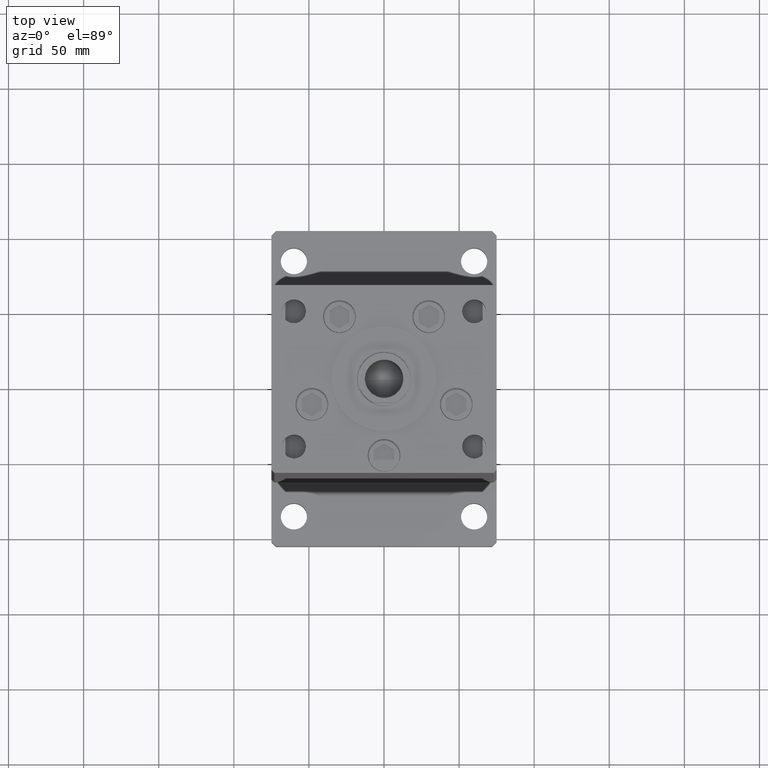
[diagram: clean part render]
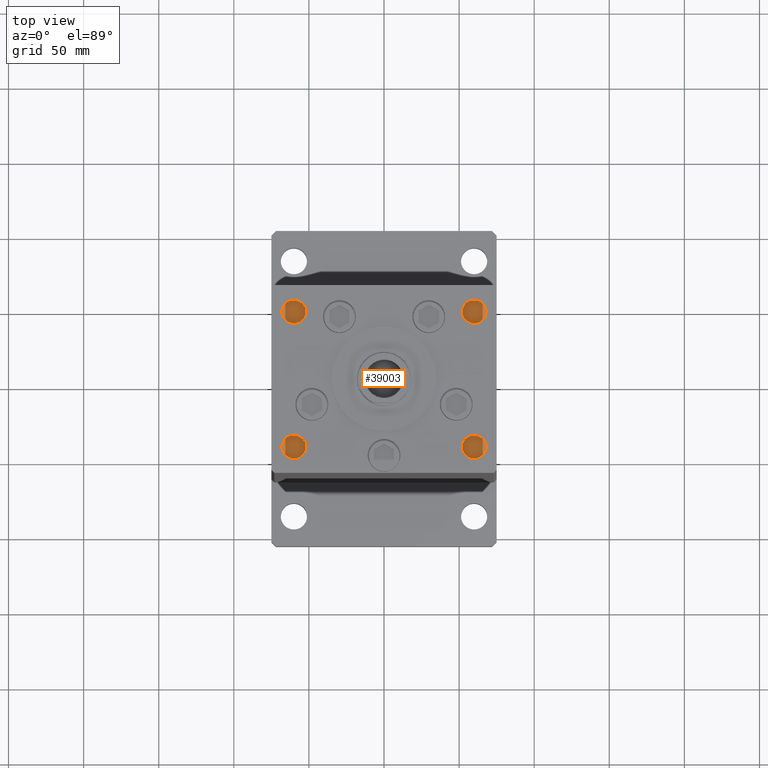
[diagram: same view with one face highlighted and labeled with its STEP entity id]
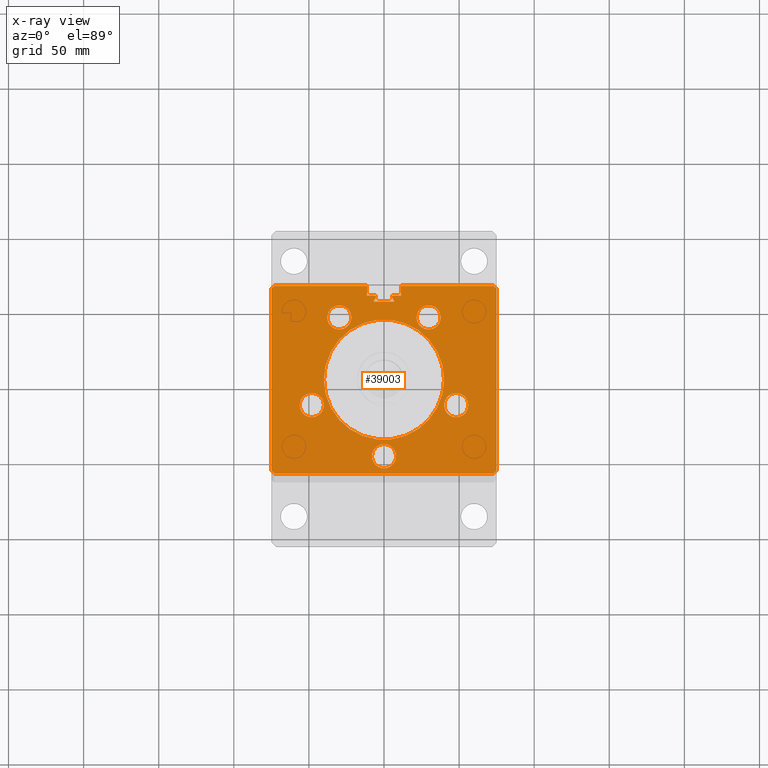
[diagram: x-ray of the same camera — body ghosted, the highlighted face saturated]
A machine part, top view. The second image highlights one B-rep face of the part: STEP entity #39003.
The next image is the same camera in x-ray: the body ghosted, the highlighted face saturated — about 0% of this face is hidden behind the body in this view.
In plain terms, the highlighted planar face has unit normal (0, 0, -1).
Its self-contained STEP definition (entity closure, byte-faithful):
#380 = CIRCLE ( 'NONE', #19008, 8.000000000000000000 ) ;
#604 = CARTESIAN_POINT ( 'NONE',  ( 72.99999999999998579, -62.50000000000000000, 317.0000000000000000 ) ) ;
#1286 = CARTESIAN_POINT ( 'NONE',  ( 73.00000000000001421, 62.50000000000000000, 317.0000000000000000 ) ) ;
#1452 = CIRCLE ( 'NONE', #10329, 8.000000000000000000 ) ;
#1484 = AXIS2_PLACEMENT_3D ( 'NONE', #22049, #16808, #34777 ) ;
#1746 = EDGE_CURVE ( 'NONE', #22954, #33125, #16579, .T. ) ;
#1755 = CARTESIAN_POINT ( 'NONE',  ( 6.183333333334001480, 55.99999999999999289, 317.0000000000000000 ) ) ;
#1797 = EDGE_LOOP ( 'NONE', ( #43996, #42377 ) ) ;
#1890 = EDGE_CURVE ( 'NONE', #12719, #51987, #12760, .T. ) ;
#2171 = AXIS2_PLACEMENT_3D ( 'NONE', #5818, #44077, #18594 ) ;
#2283 = DIRECTION ( 'NONE',  ( 0.7071067811865474617, -0.7071067811865474617, 0.000000000000000000 ) ) ;
#2338 = DIRECTION ( 'NONE',  ( 1.000000000000000000, 0.000000000000000000, 0.000000000000000000 ) ) ;
#2426 = ORIENTED_EDGE ( 'NONE', *, *, #25910, .T. ) ;
#2493 = ORIENTED_EDGE ( 'NONE', *, *, #1746, .F. ) ;
#2545 = DIRECTION ( 'NONE',  ( 1.000000000000000000, 0.000000000000000000, 0.000000000000000000 ) ) ;
#2717 = CARTESIAN_POINT ( 'NONE',  ( -75.00000000000001421, 60.50000000000000000, 317.0000000000000000 ) ) ;
#3162 = LINE ( 'NONE', #49182, #7488 ) ;
#3616 = CARTESIAN_POINT ( 'NONE',  ( -37.73102073172060500, 41.43749999999999289, 317.0000000000000000 ) ) ;
#3999 = VECTOR ( 'NONE', #32031, 1000.000000000000114 ) ;
#4003 = ORIENTED_EDGE ( 'NONE', *, *, #35906, .F. ) ;
#4589 = CARTESIAN_POINT ( 'NONE',  ( 27.67377574066574297, 15.97746187336677259, 317.0000000000000000 ) ) ;
#4815 = VERTEX_POINT ( 'NONE', #51220 ) ;
#4845 = CARTESIAN_POINT ( 'NONE',  ( -11.25000000000000178, 62.49999999999999289, 317.0000000000000000 ) ) ;
#4954 = CARTESIAN_POINT ( 'NONE',  ( 6.245698675651500444E-15, -51.00000000000000000, 317.0000000000000000 ) ) ;
#4965 = ORIENTED_EDGE ( 'NONE', *, *, #16099, .T. ) ;
#5102 = DIRECTION ( 'NONE',  ( -0.000000000000000000, 0.000000000000000000, 1.000000000000000000 ) ) ;
#5818 = CARTESIAN_POINT ( 'NONE',  ( 0.000000000000000000, 0.000000000000000000, 317.0000000000000000 ) ) ;
#5985 = CARTESIAN_POINT ( 'NONE',  ( -6.183333333334001480, 55.99999999999999289, 317.0000000000000000 ) ) ;
#6163 = CARTESIAN_POINT ( 'NONE',  ( 11.25000000000000178, 55.99999999999999289, 317.0000000000000000 ) ) ;
#6164 = ORIENTED_EDGE ( 'NONE', *, *, #51593, .F. ) ;
#6227 = DIRECTION ( 'NONE',  ( -1.000000000000000000, 0.000000000000000000, 0.000000000000000000 ) ) ;
#6329 = CARTESIAN_POINT ( 'NONE',  ( 48.08326112068523628, -16.99999999999998934, 317.0000000000000000 ) ) ;
#6647 = PLANE ( 'NONE',  #2171 ) ;
#6770 = CARTESIAN_POINT ( 'NONE',  ( 40.00000000000000000, 4.898587196589413026E-15, 317.0000000000000000 ) ) ;
#6922 = FACE_BOUND ( 'NONE', #32776, .T. ) ;
#6949 = EDGE_CURVE ( 'NONE', #21911, #49065, #32396, .T. ) ;
#7212 = EDGE_CURVE ( 'NONE', #27855, #41832, #39514, .T. ) ;
#7249 = VERTEX_POINT ( 'NONE', #5985 ) ;
#7488 = VECTOR ( 'NONE', #2338, 1000.000000000000000 ) ;
#7740 = EDGE_CURVE ( 'NONE', #41832, #28500, #14387, .T. ) ;
#8018 = CARTESIAN_POINT ( 'NONE',  ( -40.08326112068523628, -17.00000000000000000, 317.0000000000000000 ) ) ;
#8024 = VECTOR ( 'NONE', #34620, 1000.000000000000114 ) ;
#8365 = CARTESIAN_POINT ( 'NONE',  ( 29.73102073172059789, 41.43750000000000000, 317.0000000000000000 ) ) ;
#8429 = ORIENTED_EDGE ( 'NONE', *, *, #19482, .T. ) ;
#8567 = EDGE_LOOP ( 'NONE', ( #6164, #37391 ) ) ;
#8571 = DIRECTION ( 'NONE',  ( 0.000000000000000000, 0.000000000000000000, 1.000000000000000000 ) ) ;
#8750 = LINE ( 'NONE', #4589, #47161 ) ;
#8784 = DIRECTION ( 'NONE',  ( -2.293849224432141861E-16, -1.000000000000000000, 0.000000000000000000 ) ) ;
#9001 = LINE ( 'NONE', #29528, #11843 ) ;
#9407 = DIRECTION ( 'NONE',  ( 0.000000000000000000, 1.000000000000000000, 0.000000000000000000 ) ) ;
#9420 = AXIS2_PLACEMENT_3D ( 'NONE', #35712, #39303, #14657 ) ;
#9536 = EDGE_CURVE ( 'NONE', #7249, #27047, #27612, .T. ) ;
#9660 = VERTEX_POINT ( 'NONE', #25289 ) ;
#9978 = FACE_BOUND ( 'NONE', #51591, .T. ) ;
#10125 = EDGE_CURVE ( 'NONE', #37820, #54811, #16971, .T. ) ;
#10182 = LINE ( 'NONE', #27086, #24331 ) ;
#10329 = AXIS2_PLACEMENT_3D ( 'NONE', #46696, #46154, #25643 ) ;
#10601 = CARTESIAN_POINT ( 'NONE',  ( -75.00000000000001421, 60.50000000000000000, 317.0000000000000000 ) ) ;
#10753 = LINE ( 'NONE', #19355, #35053 ) ;
#10807 = FACE_OUTER_BOUND ( 'NONE', #20723, .T. ) ;
#10928 = CARTESIAN_POINT ( 'NONE',  ( 0.000000000000000000, 55.99999999999999289, 317.0000000000000000 ) ) ;
#11074 = CARTESIAN_POINT ( 'NONE',  ( -29.73102073172060500, 41.43749999999999289, 317.0000000000000000 ) ) ;
#11729 = CARTESIAN_POINT ( 'NONE',  ( -73.00000000000001421, 62.50000000000000000, 317.0000000000000000 ) ) ;
#11784 = CARTESIAN_POINT ( 'NONE',  ( -56.08326112068523628, -17.00000000000000000, 317.0000000000000000 ) ) ;
#11843 = VECTOR ( 'NONE', #51672, 1000.000000000000000 ) ;
#12070 = CIRCLE ( 'NONE', #9420, 0.9333333333340068094 ) ;
#12522 = CARTESIAN_POINT ( 'NONE',  ( -5.375042956467942723, 54.59999999999898534, 317.0000000000000000 ) ) ;
#12607 = DIRECTION ( 'NONE',  ( -1.000000000000000000, 0.000000000000000000, 0.000000000000000000 ) ) ;
#12719 = VERTEX_POINT ( 'NONE', #13694 ) ;
#12760 = LINE ( 'NONE', #42425, #36037 ) ;
#12881 = CARTESIAN_POINT ( 'NONE',  ( 0.000000000000000000, 51.99999999999986500, 317.0000000000000000 ) ) ;
#13094 = EDGE_CURVE ( 'NONE', #51789, #13881, #25935, .T. ) ;
#13468 = EDGE_CURVE ( 'NONE', #22954, #52969, #8750, .T. ) ;
#13569 = ORIENTED_EDGE ( 'NONE', *, *, #9536, .F. ) ;
#13694 = CARTESIAN_POINT ( 'NONE',  ( 11.24999999999999467, 62.49999999999999289, 317.0000000000000000 ) ) ;
#13881 = VERTEX_POINT ( 'NONE', #22801 ) ;
#14126 = AXIS2_PLACEMENT_3D ( 'NONE', #6329, #22697, #27676 ) ;
#14387 = LINE ( 'NONE', #31300, #8024 ) ;
#14600 = DIRECTION ( 'NONE',  ( -0.000000000000000000, 0.000000000000000000, 1.000000000000000000 ) ) ;
#14655 = EDGE_CURVE ( 'NONE', #30465, #37332, #32368, .T. ) ;
#14657 = DIRECTION ( 'NONE',  ( 1.000000000000000000, 0.000000000000000000, 0.000000000000000000 ) ) ;
#14880 = CIRCLE ( 'NONE', #33351, 8.000000000000000000 ) ;
#14948 = CARTESIAN_POINT ( 'NONE',  ( 74.99999999999998579, -60.50000000000000000, 317.0000000000000000 ) ) ;
#15100 = LINE ( 'NONE', #10928, #29646 ) ;
#15159 = VERTEX_POINT ( 'NONE', #8018 ) ;
#15598 = DIRECTION ( 'NONE',  ( 1.000000000000000000, 0.000000000000000000, 0.000000000000000000 ) ) ;
#15649 = EDGE_LOOP ( 'NONE', ( #4003, #46419 ) ) ;
#15805 = VERTEX_POINT ( 'NONE', #25425 ) ;
#16099 = EDGE_CURVE ( 'NONE', #30384, #28500, #9001, .T. ) ;
#16148 = EDGE_CURVE ( 'NONE', #54811, #37820, #47242, .T. ) ;
#16222 = AXIS2_PLACEMENT_3D ( 'NONE', #41854, #45756, #49915 ) ;
#16380 = CARTESIAN_POINT ( 'NONE',  ( -6.876153656360466826, 51.99999999999986500, 317.0000000000000000 ) ) ;
#16579 = CIRCLE ( 'NONE', #42990, 0.9333333333340068094 ) ;
#16699 = CARTESIAN_POINT ( 'NONE',  ( 75.00000000000001421, 60.50000000000000000, 317.0000000000000000 ) ) ;
#16760 = EDGE_CURVE ( 'NONE', #17553, #27855, #29671, .T. ) ;
#16808 = DIRECTION ( 'NONE',  ( 0.000000000000000000, 0.000000000000000000, 1.000000000000000000 ) ) ;
#16905 = DIRECTION ( 'NONE',  ( 1.000000000000000000, 0.000000000000000000, 0.000000000000000000 ) ) ;
#16971 = CIRCLE ( 'NONE', #24063, 40.00000000000000000 ) ;
#17221 = CARTESIAN_POINT ( 'NONE',  ( -74.99999999999998579, -60.50000000000000000, 317.0000000000000000 ) ) ;
#17553 = VERTEX_POINT ( 'NONE', #33561 ) ;
#17749 = ORIENTED_EDGE ( 'NONE', *, *, #6949, .T. ) ;
#17840 = ORIENTED_EDGE ( 'NONE', *, *, #39472, .F. ) ;
#18214 = DIRECTION ( 'NONE',  ( 0.7071067811865474617, -0.7071067811865474617, 0.000000000000000000 ) ) ;
#18285 = VECTOR ( 'NONE', #12607, 1000.000000000000000 ) ;
#18594 = DIRECTION ( 'NONE',  ( -1.000000000000000000, 0.000000000000000000, -0.000000000000000000 ) ) ;
#18868 = DIRECTION ( 'NONE',  ( 0.000000000000000000, 0.000000000000000000, 1.000000000000000000 ) ) ;
#18901 = DIRECTION ( 'NONE',  ( 1.000000000000000000, 0.000000000000000000, 0.000000000000000000 ) ) ;
#19008 = AXIS2_PLACEMENT_3D ( 'NONE', #11074, #18868, #23839 ) ;
#19095 = EDGE_CURVE ( 'NONE', #7249, #15805, #10182, .T. ) ;
#19193 = VECTOR ( 'NONE', #9407, 1000.000000000000000 ) ;
#19207 = CARTESIAN_POINT ( 'NONE',  ( -29.73102073172060500, 41.43749999999999289, 317.0000000000000000 ) ) ;
#19245 = DIRECTION ( 'NONE',  ( 0.000000000000000000, 0.000000000000000000, -1.000000000000000000 ) ) ;
#19313 = CIRCLE ( 'NONE', #20237, 8.000000000000000000 ) ;
#19355 = CARTESIAN_POINT ( 'NONE',  ( -73.00000000000001421, 62.50000000000000000, 317.0000000000000000 ) ) ;
#19482 = EDGE_CURVE ( 'NONE', #54471, #27811, #24247, .T. ) ;
#19765 = DIRECTION ( 'NONE',  ( 0.000000000000000000, 0.000000000000000000, 1.000000000000000000 ) ) ;
#20090 = ORIENTED_EDGE ( 'NONE', *, *, #47927, .T. ) ;
#20237 = AXIS2_PLACEMENT_3D ( 'NONE', #44205, #31468, #27302 ) ;
#20460 = VECTOR ( 'NONE', #8784, 1000.000000000000000 ) ;
#20723 = EDGE_LOOP ( 'NONE', ( #24925, #20090, #45485, #2426, #17749, #31138, #4965, #41501, #36054, #26716, #32756, #24470, #45122, #2493, #28847, #30449, #8429, #46026, #13569 ) ) ;
#20725 = AXIS2_PLACEMENT_3D ( 'NONE', #43075, #5102, #34227 ) ;
#21911 = VERTEX_POINT ( 'NONE', #10601 ) ;
#22049 = CARTESIAN_POINT ( 'NONE',  ( 6.245698675651500444E-15, -51.00000000000000000, 317.0000000000000000 ) ) ;
#22665 = CARTESIAN_POINT ( 'NONE',  ( -40.00000000000000000, 0.000000000000000000, 317.0000000000000000 ) ) ;
#22697 = DIRECTION ( 'NONE',  ( 0.000000000000000000, 0.000000000000000000, 1.000000000000000000 ) ) ;
#22801 = CARTESIAN_POINT ( 'NONE',  ( 21.73102073172059789, 41.43750000000000000, 317.0000000000000000 ) ) ;
#22954 = VERTEX_POINT ( 'NONE', #24194 ) ;
#22974 = AXIS2_PLACEMENT_3D ( 'NONE', #8365, #19765, #15598 ) ;
#23239 = DIRECTION ( 'NONE',  ( 2.293849224432141861E-16, -1.000000000000000000, 0.000000000000000000 ) ) ;
#23686 = CARTESIAN_POINT ( 'NONE',  ( 8.000000000000007105, -51.00000000000000000, 317.0000000000000000 ) ) ;
#23839 = DIRECTION ( 'NONE',  ( 1.000000000000000000, 0.000000000000000000, 0.000000000000000000 ) ) ;
#24063 = AXIS2_PLACEMENT_3D ( 'NONE', #52580, #14600, #27064 ) ;
#24194 = CARTESIAN_POINT ( 'NONE',  ( 5.375042956467943611, 54.59999999999898534, 317.0000000000000000 ) ) ;
#24247 = LINE ( 'NONE', #40308, #3999 ) ;
#24331 = VECTOR ( 'NONE', #31540, 1000.000000000000000 ) ;
#24470 = ORIENTED_EDGE ( 'NONE', *, *, #1890, .T. ) ;
#24925 = ORIENTED_EDGE ( 'NONE', *, *, #19095, .T. ) ;
#25130 = ORIENTED_EDGE ( 'NONE', *, *, #35506, .F. ) ;
#25220 = CARTESIAN_POINT ( 'NONE',  ( 56.08326112068523628, -16.99999999999998934, 317.0000000000000000 ) ) ;
#25289 = CARTESIAN_POINT ( 'NONE',  ( -7.999999999999992895, -51.00000000000000000, 317.0000000000000000 ) ) ;
#25392 = CIRCLE ( 'NONE', #1484, 8.000000000000000000 ) ;
#25425 = CARTESIAN_POINT ( 'NONE',  ( -11.25000000000000178, 55.99999999999999289, 317.0000000000000000 ) ) ;
#25499 = ORIENTED_EDGE ( 'NONE', *, *, #13094, .F. ) ;
#25643 = DIRECTION ( 'NONE',  ( 1.000000000000000000, 0.000000000000000000, 0.000000000000000000 ) ) ;
#25910 = EDGE_CURVE ( 'NONE', #30465, #21911, #10753, .T. ) ;
#25935 = CIRCLE ( 'NONE', #16222, 8.000000000000000000 ) ;
#26716 = ORIENTED_EDGE ( 'NONE', *, *, #16760, .F. ) ;
#27047 = VERTEX_POINT ( 'NONE', #33002 ) ;
#27064 = DIRECTION ( 'NONE',  ( 1.000000000000000000, 0.000000000000000000, 0.000000000000000000 ) ) ;
#27086 = CARTESIAN_POINT ( 'NONE',  ( 0.000000000000000000, 55.99999999999999289, 317.0000000000000000 ) ) ;
#27249 = EDGE_CURVE ( 'NONE', #27047, #27811, #12070, .T. ) ;
#27302 = DIRECTION ( 'NONE',  ( 1.000000000000000000, 0.000000000000000000, 0.000000000000000000 ) ) ;
#27612 = CIRCLE ( 'NONE', #39980, 0.9333333333340068094 ) ;
#27676 = DIRECTION ( 'NONE',  ( 1.000000000000000000, 0.000000000000000000, 0.000000000000000000 ) ) ;
#27811 = VERTEX_POINT ( 'NONE', #12522 ) ;
#27855 = VERTEX_POINT ( 'NONE', #16699 ) ;
#28206 = DIRECTION ( 'NONE',  ( 1.000000000000000000, 0.000000000000000000, 0.000000000000000000 ) ) ;
#28500 = VERTEX_POINT ( 'NONE', #604 ) ;
#28847 = ORIENTED_EDGE ( 'NONE', *, *, #13468, .T. ) ;
#29499 = VERTEX_POINT ( 'NONE', #11784 ) ;
#29528 = CARTESIAN_POINT ( 'NONE',  ( -72.99999999999998579, -62.50000000000000000, 317.0000000000000000 ) ) ;
#29547 = DIRECTION ( 'NONE',  ( 0.5000000000000016653, -0.8660254037844375974, 0.000000000000000000 ) ) ;
#29573 = DIRECTION ( 'NONE',  ( -0.7071067811865474617, -0.7071067811865474617, 0.000000000000000000 ) ) ;
#29646 = VECTOR ( 'NONE', #6227, 1000.000000000000000 ) ;
#29671 = LINE ( 'NONE', #1286, #36689 ) ;
#29686 = VECTOR ( 'NONE', #2283, 1000.000000000000114 ) ;
#29761 = CARTESIAN_POINT ( 'NONE',  ( 40.08326112068523628, -16.99999999999998934, 317.0000000000000000 ) ) ;
#30384 = VERTEX_POINT ( 'NONE', #52245 ) ;
#30449 = ORIENTED_EDGE ( 'NONE', *, *, #43128, .T. ) ;
#30465 = VERTEX_POINT ( 'NONE', #11729 ) ;
#31041 = CARTESIAN_POINT ( 'NONE',  ( -11.25000000000000178, 0.000000000000000000, 317.0000000000000000 ) ) ;
#31138 = ORIENTED_EDGE ( 'NONE', *, *, #39505, .T. ) ;
#31300 = CARTESIAN_POINT ( 'NONE',  ( 74.99999999999998579, -60.50000000000000000, 317.0000000000000000 ) ) ;
#31314 = LINE ( 'NONE', #31041, #19193 ) ;
#31468 = DIRECTION ( 'NONE',  ( 0.000000000000000000, 0.000000000000000000, 1.000000000000000000 ) ) ;
#31540 = DIRECTION ( 'NONE',  ( -1.000000000000000000, 0.000000000000000000, 0.000000000000000000 ) ) ;
#31615 = FACE_BOUND ( 'NONE', #1797, .T. ) ;
#32003 = DIRECTION ( 'NONE',  ( 1.000000000000000000, 0.000000000000000000, 0.000000000000000000 ) ) ;
#32031 = DIRECTION ( 'NONE',  ( 0.5000000000000016653, 0.8660254037844375974, 0.000000000000000000 ) ) ;
#32168 = FACE_BOUND ( 'NONE', #8567, .T. ) ;
#32368 = LINE ( 'NONE', #49255, #37469 ) ;
#32396 = LINE ( 'NONE', #2717, #35476 ) ;
#32756 = ORIENTED_EDGE ( 'NONE', *, *, #38342, .F. ) ;
#32776 = EDGE_LOOP ( 'NONE', ( #54611, #51245 ) ) ;
#33002 = CARTESIAN_POINT ( 'NONE',  ( -5.249999999999994671, 55.06666666666598786, 317.0000000000000000 ) ) ;
#33125 = VERTEX_POINT ( 'NONE', #1755 ) ;
#33351 = AXIS2_PLACEMENT_3D ( 'NONE', #39115, #39945, #18901 ) ;
#33561 = CARTESIAN_POINT ( 'NONE',  ( 73.00000000000001421, 62.50000000000000000, 317.0000000000000000 ) ) ;
#33961 = LINE ( 'NONE', #12881, #18285 ) ;
#34227 = DIRECTION ( 'NONE',  ( 1.000000000000000000, 0.000000000000000000, 0.000000000000000000 ) ) ;
#34620 = DIRECTION ( 'NONE',  ( -0.7071067811865474617, -0.7071067811865474617, 0.000000000000000000 ) ) ;
#34777 = DIRECTION ( 'NONE',  ( 1.000000000000000000, 0.000000000000000000, 0.000000000000000000 ) ) ;
#35053 = VECTOR ( 'NONE', #29573, 1000.000000000000114 ) ;
#35282 = ORIENTED_EDGE ( 'NONE', *, *, #38939, .F. ) ;
#35476 = VECTOR ( 'NONE', #23239, 1000.000000000000000 ) ;
#35506 = EDGE_CURVE ( 'NONE', #13881, #51789, #53039, .T. ) ;
#35712 = CARTESIAN_POINT ( 'NONE',  ( -6.183333333334001480, 55.06666666666598786, 317.0000000000000000 ) ) ;
#35846 = AXIS2_PLACEMENT_3D ( 'NONE', #19207, #53022, #44971 ) ;
#35906 = EDGE_CURVE ( 'NONE', #37372, #9660, #43209, .T. ) ;
#36037 = VECTOR ( 'NONE', #37173, 1000.000000000000000 ) ;
#36054 = ORIENTED_EDGE ( 'NONE', *, *, #7212, .F. ) ;
#36090 = EDGE_CURVE ( 'NONE', #48947, #47867, #54738, .T. ) ;
#36689 = VECTOR ( 'NONE', #18214, 1000.000000000000114 ) ;
#37173 = DIRECTION ( 'NONE',  ( -0.000000000000000000, -1.000000000000000000, 0.000000000000000000 ) ) ;
#37332 = VERTEX_POINT ( 'NONE', #4845 ) ;
#37372 = VERTEX_POINT ( 'NONE', #23686 ) ;
#37391 = ORIENTED_EDGE ( 'NONE', *, *, #43043, .F. ) ;
#37469 = VECTOR ( 'NONE', #28206, 1000.000000000000000 ) ;
#37820 = VERTEX_POINT ( 'NONE', #22665 ) ;
#38342 = EDGE_CURVE ( 'NONE', #12719, #17553, #3162, .T. ) ;
#38385 = EDGE_CURVE ( 'NONE', #51987, #33125, #15100, .T. ) ;
#38420 = CARTESIAN_POINT ( 'NONE',  ( 75.00000000000001421, 60.50000000000000000, 317.0000000000000000 ) ) ;
#38601 = CARTESIAN_POINT ( 'NONE',  ( 37.73102073172059789, 41.43750000000000000, 317.0000000000000000 ) ) ;
#38888 = AXIS2_PLACEMENT_3D ( 'NONE', #4954, #8571, #16905 ) ;
#38939 = EDGE_CURVE ( 'NONE', #4815, #47675, #380, .T. ) ;
#39003 = ADVANCED_FACE ( 'NONE', ( #32168, #48778, #31615, #9978, #44891, #10807, #6922 ), #6647, .F. ) ;
#39115 = CARTESIAN_POINT ( 'NONE',  ( 48.08326112068523628, -16.99999999999998934, 317.0000000000000000 ) ) ;
#39303 = DIRECTION ( 'NONE',  ( 0.000000000000000000, 0.000000000000000000, -1.000000000000000000 ) ) ;
#39472 = EDGE_CURVE ( 'NONE', #47675, #4815, #47349, .T. ) ;
#39505 = EDGE_CURVE ( 'NONE', #49065, #30384, #48851, .T. ) ;
#39514 = LINE ( 'NONE', #38420, #20460 ) ;
#39945 = DIRECTION ( 'NONE',  ( 0.000000000000000000, 0.000000000000000000, 1.000000000000000000 ) ) ;
#39980 = AXIS2_PLACEMENT_3D ( 'NONE', #53057, #19245, #32003 ) ;
#40308 = CARTESIAN_POINT ( 'NONE',  ( -27.67377574066574297, 15.97746187336677259, 317.0000000000000000 ) ) ;
#41501 = ORIENTED_EDGE ( 'NONE', *, *, #7740, .F. ) ;
#41832 = VERTEX_POINT ( 'NONE', #14948 ) ;
#41854 = CARTESIAN_POINT ( 'NONE',  ( 29.73102073172059789, 41.43750000000000000, 317.0000000000000000 ) ) ;
#42377 = ORIENTED_EDGE ( 'NONE', *, *, #36090, .F. ) ;
#42425 = CARTESIAN_POINT ( 'NONE',  ( 11.25000000000000178, 0.000000000000000000, 317.0000000000000000 ) ) ;
#42990 = AXIS2_PLACEMENT_3D ( 'NONE', #53275, #53552, #2545 ) ;
#43043 = EDGE_CURVE ( 'NONE', #29499, #15159, #1452, .T. ) ;
#43075 = CARTESIAN_POINT ( 'NONE',  ( 0.000000000000000000, 0.000000000000000000, 317.0000000000000000 ) ) ;
#43128 = EDGE_CURVE ( 'NONE', #52969, #54471, #33961, .T. ) ;
#43209 = CIRCLE ( 'NONE', #38888, 8.000000000000000000 ) ;
#43996 = ORIENTED_EDGE ( 'NONE', *, *, #47583, .F. ) ;
#44077 = DIRECTION ( 'NONE',  ( 0.000000000000000000, 0.000000000000000000, -1.000000000000000000 ) ) ;
#44205 = CARTESIAN_POINT ( 'NONE',  ( -48.08326112068523628, -17.00000000000000000, 317.0000000000000000 ) ) ;
#44891 = FACE_BOUND ( 'NONE', #49339, .T. ) ;
#44971 = DIRECTION ( 'NONE',  ( 1.000000000000000000, 0.000000000000000000, 0.000000000000000000 ) ) ;
#45122 = ORIENTED_EDGE ( 'NONE', *, *, #38385, .T. ) ;
#45485 = ORIENTED_EDGE ( 'NONE', *, *, #14655, .F. ) ;
#45756 = DIRECTION ( 'NONE',  ( 0.000000000000000000, 0.000000000000000000, 1.000000000000000000 ) ) ;
#46026 = ORIENTED_EDGE ( 'NONE', *, *, #27249, .F. ) ;
#46154 = DIRECTION ( 'NONE',  ( 0.000000000000000000, 0.000000000000000000, 1.000000000000000000 ) ) ;
#46419 = ORIENTED_EDGE ( 'NONE', *, *, #48631, .F. ) ;
#46696 = CARTESIAN_POINT ( 'NONE',  ( -48.08326112068523628, -17.00000000000000000, 317.0000000000000000 ) ) ;
#47161 = VECTOR ( 'NONE', #29547, 1000.000000000000114 ) ;
#47242 = CIRCLE ( 'NONE', #20725, 40.00000000000000000 ) ;
#47349 = CIRCLE ( 'NONE', #35846, 8.000000000000000000 ) ;
#47404 = CARTESIAN_POINT ( 'NONE',  ( 6.876153656360466826, 51.99999999999986500, 317.0000000000000000 ) ) ;
#47583 = EDGE_CURVE ( 'NONE', #47867, #48947, #14880, .T. ) ;
#47675 = VERTEX_POINT ( 'NONE', #3616 ) ;
#47867 = VERTEX_POINT ( 'NONE', #25220 ) ;
#47927 = EDGE_CURVE ( 'NONE', #15805, #37332, #31314, .T. ) ;
#48631 = EDGE_CURVE ( 'NONE', #9660, #37372, #25392, .T. ) ;
#48778 = FACE_BOUND ( 'NONE', #15649, .T. ) ;
#48851 = LINE ( 'NONE', #52748, #29686 ) ;
#48947 = VERTEX_POINT ( 'NONE', #29761 ) ;
#49065 = VERTEX_POINT ( 'NONE', #17221 ) ;
#49182 = CARTESIAN_POINT ( 'NONE',  ( -11.25000000000000178, 62.49999999999999289, 317.0000000000000000 ) ) ;
#49255 = CARTESIAN_POINT ( 'NONE',  ( -11.25000000000000178, 62.49999999999999289, 317.0000000000000000 ) ) ;
#49339 = EDGE_LOOP ( 'NONE', ( #35282, #17840 ) ) ;
#49915 = DIRECTION ( 'NONE',  ( 1.000000000000000000, 0.000000000000000000, 0.000000000000000000 ) ) ;
#51220 = CARTESIAN_POINT ( 'NONE',  ( -21.73102073172060500, 41.43749999999999289, 317.0000000000000000 ) ) ;
#51245 = ORIENTED_EDGE ( 'NONE', *, *, #16148, .F. ) ;
#51591 = EDGE_LOOP ( 'NONE', ( #25499, #25130 ) ) ;
#51593 = EDGE_CURVE ( 'NONE', #15159, #29499, #19313, .T. ) ;
#51672 = DIRECTION ( 'NONE',  ( 1.000000000000000000, 0.000000000000000000, 0.000000000000000000 ) ) ;
#51789 = VERTEX_POINT ( 'NONE', #38601 ) ;
#51987 = VERTEX_POINT ( 'NONE', #6163 ) ;
#52245 = CARTESIAN_POINT ( 'NONE',  ( -72.99999999999998579, -62.50000000000000000, 317.0000000000000000 ) ) ;
#52580 = CARTESIAN_POINT ( 'NONE',  ( 0.000000000000000000, 0.000000000000000000, 317.0000000000000000 ) ) ;
#52748 = CARTESIAN_POINT ( 'NONE',  ( -74.99999999999998579, -60.50000000000000000, 317.0000000000000000 ) ) ;
#52969 = VERTEX_POINT ( 'NONE', #47404 ) ;
#53022 = DIRECTION ( 'NONE',  ( 0.000000000000000000, 0.000000000000000000, 1.000000000000000000 ) ) ;
#53039 = CIRCLE ( 'NONE', #22974, 8.000000000000000000 ) ;
#53057 = CARTESIAN_POINT ( 'NONE',  ( -6.183333333334001480, 55.06666666666598786, 317.0000000000000000 ) ) ;
#53275 = CARTESIAN_POINT ( 'NONE',  ( 6.183333333334001480, 55.06666666666598786, 317.0000000000000000 ) ) ;
#53552 = DIRECTION ( 'NONE',  ( 0.000000000000000000, 0.000000000000000000, -1.000000000000000000 ) ) ;
#54471 = VERTEX_POINT ( 'NONE', #16380 ) ;
#54611 = ORIENTED_EDGE ( 'NONE', *, *, #10125, .F. ) ;
#54738 = CIRCLE ( 'NONE', #14126, 8.000000000000000000 ) ;
#54811 = VERTEX_POINT ( 'NONE', #6770 ) ;